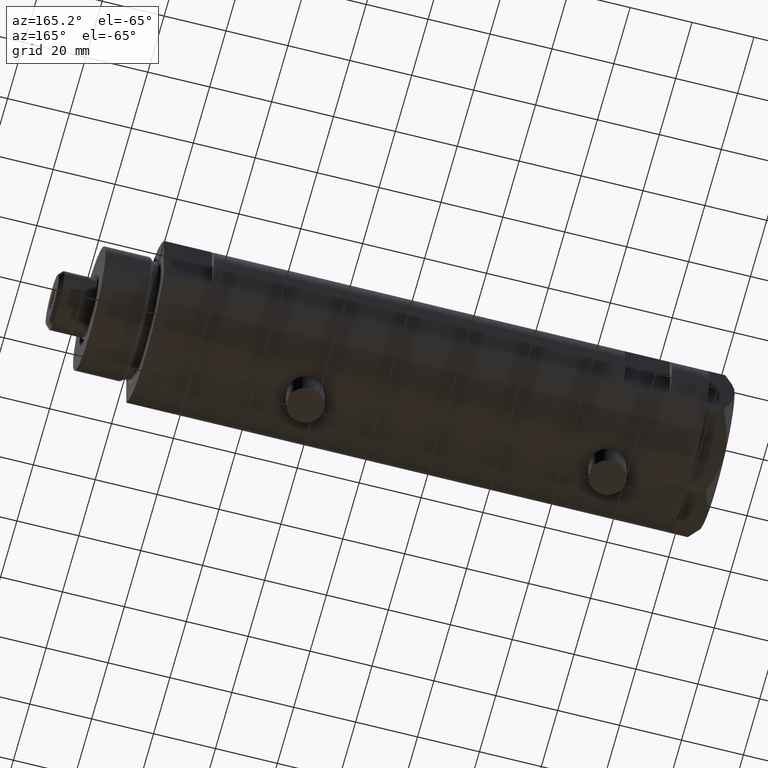
[diagram: clean part render]
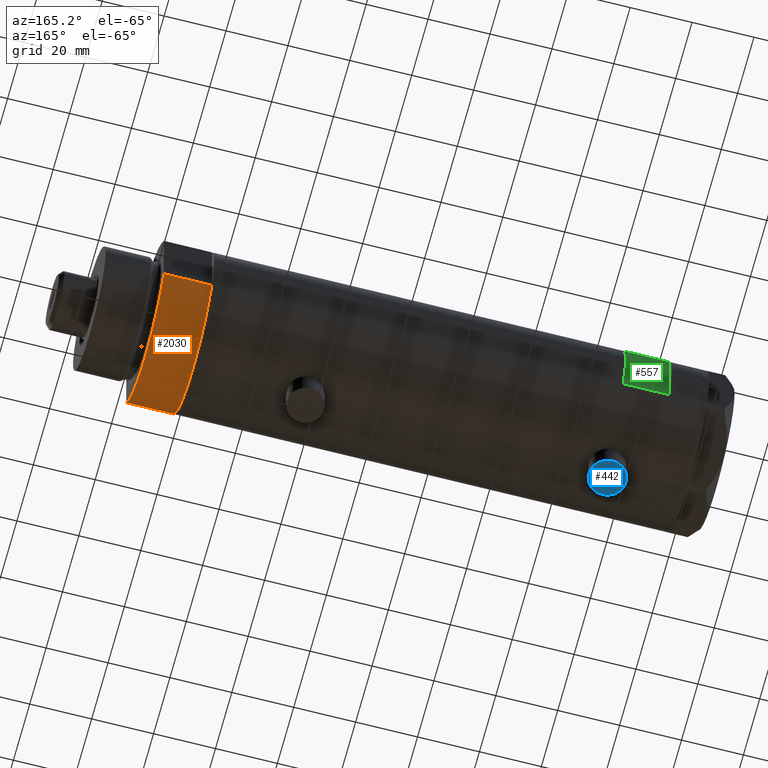
[diagram: same view with three faces highlighted in distinct colors, each labeled with its STEP entity id]
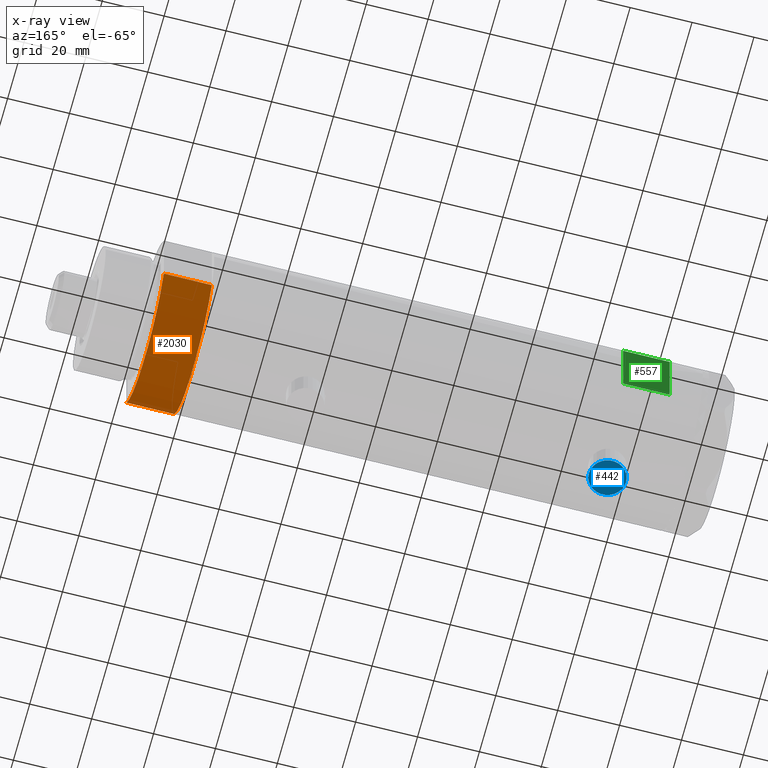
[diagram: x-ray of the same camera — body ghosted, the three highlighted faces saturated]
A machine part, auxiliary view with three faces highlighted in distinct colors.
The next image is the same camera in x-ray (body ghosted, the three faces saturated) — at least one of them is partly hidden behind the body in this view.
Their STEP definitions:

[orange] entity #2030 — the highlighted cylindrical surface (partial cylindrical patch) has radius 26 mm, axis along (-1, -0, 0).
#8 = CARTESIAN_POINT ( 'NONE',  ( 0.000000000000000000, 0.000000000000000000, 0.000000000000000000 ) ) ;
#31 = CARTESIAN_POINT ( 'NONE',  ( 12.12435565298214790, 23.00000000000000355, 15.50000000000000000 ) ) ;
#136 = CARTESIAN_POINT ( 'NONE',  ( 0.000000000000000000, 0.000000000000000000, 15.50000000000000000 ) ) ;
#270 = CIRCLE ( 'NONE', #3322, 26.00000000000000355 ) ;
#364 = CARTESIAN_POINT ( 'NONE',  ( 12.12435565298215323, 23.00000000000000355, 0.000000000000000000 ) ) ;
#435 = EDGE_CURVE ( 'NONE', #1772, #529, #4556, .T. ) ;
#529 = VERTEX_POINT ( 'NONE', #31 ) ;
#660 = DIRECTION ( 'NONE',  ( 0.000000000000000000, 0.000000000000000000, 1.000000000000000000 ) ) ;
#1030 = VERTEX_POINT ( 'NONE', #2199 ) ;
#1508 = AXIS2_PLACEMENT_3D ( 'NONE', #2589, #660, #4776 ) ;
#1559 = DIRECTION ( 'NONE',  ( -0.000000000000000000, -0.000000000000000000, -1.000000000000000000 ) ) ;
#1772 = VERTEX_POINT ( 'NONE', #2940 ) ;
#1787 = EDGE_CURVE ( 'NONE', #1030, #1772, #3345, .T. ) ;
#1835 = DIRECTION ( 'NONE',  ( -0.000000000000000000, -0.000000000000000000, 1.000000000000000000 ) ) ;
#1870 = DIRECTION ( 'NONE',  ( 1.000000000000000000, 0.000000000000000000, 0.000000000000000000 ) ) ;
#1916 = VECTOR ( 'NONE', #4846, 1000.000000000000000 ) ;
#2030 = ADVANCED_FACE ( 'NONE', ( #2044 ), #3494, .T. ) ;
#2044 = FACE_OUTER_BOUND ( 'NONE', #2200, .T. ) ;
#2199 = CARTESIAN_POINT ( 'NONE',  ( 12.12435565298215323, -22.99999999999999645, 0.000000000000000000 ) ) ;
#2200 = EDGE_LOOP ( 'NONE', ( #2841, #4818, #2528, #3045 ) ) ;
#2528 = ORIENTED_EDGE ( 'NONE', *, *, #3598, .T. ) ;
#2589 = CARTESIAN_POINT ( 'NONE',  ( 0.000000000000000000, 0.000000000000000000, 15.50000000000000000 ) ) ;
#2738 = DIRECTION ( 'NONE',  ( -1.000000000000000000, 0.000000000000000000, 0.000000000000000000 ) ) ;
#2841 = ORIENTED_EDGE ( 'NONE', *, *, #435, .F. ) ;
#2940 = CARTESIAN_POINT ( 'NONE',  ( 12.12435565298215323, -22.99999999999999645, 15.50000000000000000 ) ) ;
#2999 = LINE ( 'NONE', #364, #4176 ) ;
#3045 = ORIENTED_EDGE ( 'NONE', *, *, #4041, .T. ) ;
#3322 = AXIS2_PLACEMENT_3D ( 'NONE', #8, #4185, #1870 ) ;
#3345 = LINE ( 'NONE', #4019, #1916 ) ;
#3494 = CYLINDRICAL_SURFACE ( 'NONE', #3869, 26.00000000000000355 ) ;
#3598 = EDGE_CURVE ( 'NONE', #1030, #3673, #270, .T. ) ;
#3673 = VERTEX_POINT ( 'NONE', #4132 ) ;
#3869 = AXIS2_PLACEMENT_3D ( 'NONE', #136, #1559, #2738 ) ;
#4019 = CARTESIAN_POINT ( 'NONE',  ( 12.12435565298215323, -22.99999999999999645, 0.000000000000000000 ) ) ;
#4041 = EDGE_CURVE ( 'NONE', #3673, #529, #2999, .T. ) ;
#4132 = CARTESIAN_POINT ( 'NONE',  ( 12.12435565298214080, 23.00000000000000355, 0.000000000000000000 ) ) ;
#4176 = VECTOR ( 'NONE', #1835, 1000.000000000000000 ) ;
#4185 = DIRECTION ( 'NONE',  ( 0.000000000000000000, 0.000000000000000000, 1.000000000000000000 ) ) ;
#4556 = CIRCLE ( 'NONE', #1508, 26.00000000000000355 ) ;
#4776 = DIRECTION ( 'NONE',  ( 1.000000000000000000, 0.000000000000000000, 0.000000000000000000 ) ) ;
#4818 = ORIENTED_EDGE ( 'NONE', *, *, #1787, .F. ) ;
#4846 = DIRECTION ( 'NONE',  ( -0.000000000000000000, -0.000000000000000000, 1.000000000000000000 ) ) ;

[blue] entity #442 — the highlighted planar face has unit normal (-0, 0, -1).
#209 = CARTESIAN_POINT ( 'NONE',  ( -33.39999999999999858, 0.000000000000000000, 48.95000000000000995 ) ) ;
#442 = ADVANCED_FACE ( 'NONE', ( #1412 ), #2919, .T. ) ;
#602 = CARTESIAN_POINT ( 'NONE',  ( -33.39999999999999858, 0.000000000000000000, 54.95000000000000284 ) ) ;
#1412 = FACE_OUTER_BOUND ( 'NONE', #3085, .T. ) ;
#1599 = AXIS2_PLACEMENT_3D ( 'NONE', #602, #3490, #3138 ) ;
#1690 = AXIS2_PLACEMENT_3D ( 'NONE', #1826, #3042, #2551 ) ;
#1810 = DIRECTION ( 'NONE',  ( -1.000000000000000000, 0.000000000000000000, 0.000000000000000000 ) ) ;
#1817 = VERTEX_POINT ( 'NONE', #209 ) ;
#1826 = CARTESIAN_POINT ( 'NONE',  ( -33.39999999999999858, 0.000000000000000000, 54.95000000000000284 ) ) ;
#1880 = VERTEX_POINT ( 'NONE', #4291 ) ;
#2194 = DIRECTION ( 'NONE',  ( 0.000000000000000000, 0.000000000000000000, 1.000000000000000000 ) ) ;
#2282 = EDGE_CURVE ( 'NONE', #1880, #1817, #4017, .T. ) ;
#2551 = DIRECTION ( 'NONE',  ( 0.000000000000000000, 0.000000000000000000, 1.000000000000000000 ) ) ;
#2826 = ORIENTED_EDGE ( 'NONE', *, *, #2282, .T. ) ;
#2919 = PLANE ( 'NONE',  #4161 ) ;
#3042 = DIRECTION ( 'NONE',  ( -1.000000000000000000, 0.000000000000000000, 0.000000000000000000 ) ) ;
#3085 = EDGE_LOOP ( 'NONE', ( #3921, #2826 ) ) ;
#3138 = DIRECTION ( 'NONE',  ( 0.000000000000000000, 0.000000000000000000, 1.000000000000000000 ) ) ;
#3490 = DIRECTION ( 'NONE',  ( -1.000000000000000000, 0.000000000000000000, 0.000000000000000000 ) ) ;
#3713 = CIRCLE ( 'NONE', #1690, 5.999999999999998224 ) ;
#3921 = ORIENTED_EDGE ( 'NONE', *, *, #4720, .T. ) ;
#4017 = CIRCLE ( 'NONE', #1599, 5.999999999999998224 ) ;
#4161 = AXIS2_PLACEMENT_3D ( 'NONE', #4395, #1810, #2194 ) ;
#4291 = CARTESIAN_POINT ( 'NONE',  ( -33.39999999999999858, 7.347880794884107903E-16, 60.95000000000000284 ) ) ;
#4395 = CARTESIAN_POINT ( 'NONE',  ( -33.39999999999999858, 0.000000000000000000, 54.95000000000000284 ) ) ;
#4720 = EDGE_CURVE ( 'NONE', #1817, #1880, #3713, .T. ) ;

[green] entity #557 — the highlighted planar face has unit normal (0, -1, -0).
#426 = VERTEX_POINT ( 'NONE', #4854 ) ;
#557 = ADVANCED_FACE ( 'NONE', ( #1509 ), #1259, .F. ) ;
#579 = VECTOR ( 'NONE', #3424, 1000.000000000000000 ) ;
#594 = EDGE_CURVE ( 'NONE', #1738, #4416, #3513, .T. ) ;
#643 = EDGE_CURVE ( 'NONE', #426, #4835, #1450, .T. ) ;
#810 = LINE ( 'NONE', #1514, #579 ) ;
#876 = DIRECTION ( 'NONE',  ( 1.000000000000000000, -0.000000000000000000, -0.000000000000000000 ) ) ;
#942 = DIRECTION ( 'NONE',  ( -0.000000000000000000, -0.000000000000000000, -1.000000000000000000 ) ) ;
#1034 = DIRECTION ( 'NONE',  ( 1.000000000000000000, -0.000000000000000000, -0.000000000000000000 ) ) ;
#1094 = CARTESIAN_POINT ( 'NONE',  ( 12.12435565298214080, 23.00000000000000355, 68.95000000000003126 ) ) ;
#1259 = PLANE ( 'NONE',  #2470 ) ;
#1267 = EDGE_CURVE ( 'NONE', #426, #1738, #810, .T. ) ;
#1450 = LINE ( 'NONE', #4342, #1748 ) ;
#1509 = FACE_OUTER_BOUND ( 'NONE', #4583, .T. ) ;
#1514 = CARTESIAN_POINT ( 'NONE',  ( -12.12435565298214080, 23.00000000000000355, -78.95000000000000284 ) ) ;
#1738 = VERTEX_POINT ( 'NONE', #3701 ) ;
#1748 = VECTOR ( 'NONE', #1034, 1000.000000000000000 ) ;
#1885 = DIRECTION ( 'NONE',  ( 0.000000000000000000, -1.000000000000000000, -0.000000000000000000 ) ) ;
#1929 = ORIENTED_EDGE ( 'NONE', *, *, #594, .T. ) ;
#2048 = LINE ( 'NONE', #3522, #3622 ) ;
#2060 = DIRECTION ( 'NONE',  ( 0.000000000000000000, 0.000000000000000000, -1.000000000000000000 ) ) ;
#2456 = ORIENTED_EDGE ( 'NONE', *, *, #1267, .T. ) ;
#2470 = AXIS2_PLACEMENT_3D ( 'NONE', #3487, #1885, #2060 ) ;
#2748 = ORIENTED_EDGE ( 'NONE', *, *, #643, .F. ) ;
#2819 = EDGE_CURVE ( 'NONE', #4416, #4835, #2048, .T. ) ;
#3216 = ORIENTED_EDGE ( 'NONE', *, *, #2819, .T. ) ;
#3424 = DIRECTION ( 'NONE',  ( 0.000000000000000000, 0.000000000000000000, 1.000000000000000000 ) ) ;
#3487 = CARTESIAN_POINT ( 'NONE',  ( -26.00000000000000355, 23.00000000000000355, 68.95000000000003126 ) ) ;
#3509 = CARTESIAN_POINT ( 'NONE',  ( 12.12435565298213724, 23.00000000000000355, 53.95000000000002416 ) ) ;
#3513 = LINE ( 'NONE', #4216, #4245 ) ;
#3522 = CARTESIAN_POINT ( 'NONE',  ( 12.12435565298214080, 23.00000000000000355, -78.95000000000000284 ) ) ;
#3622 = VECTOR ( 'NONE', #942, 1000.000000000000000 ) ;
#3701 = CARTESIAN_POINT ( 'NONE',  ( -12.12435565298214080, 23.00000000000000355, 68.95000000000003126 ) ) ;
#4216 = CARTESIAN_POINT ( 'NONE',  ( -26.00000000000000355, 23.00000000000000355, 68.95000000000003126 ) ) ;
#4245 = VECTOR ( 'NONE', #876, 1000.000000000000000 ) ;
#4342 = CARTESIAN_POINT ( 'NONE',  ( -26.00000000000000355, 23.00000000000000355, 53.95000000000002416 ) ) ;
#4416 = VERTEX_POINT ( 'NONE', #1094 ) ;
#4583 = EDGE_LOOP ( 'NONE', ( #3216, #2748, #2456, #1929 ) ) ;
#4835 = VERTEX_POINT ( 'NONE', #3509 ) ;
#4854 = CARTESIAN_POINT ( 'NONE',  ( -12.12435565298214080, 23.00000000000000355, 53.95000000000002416 ) ) ;